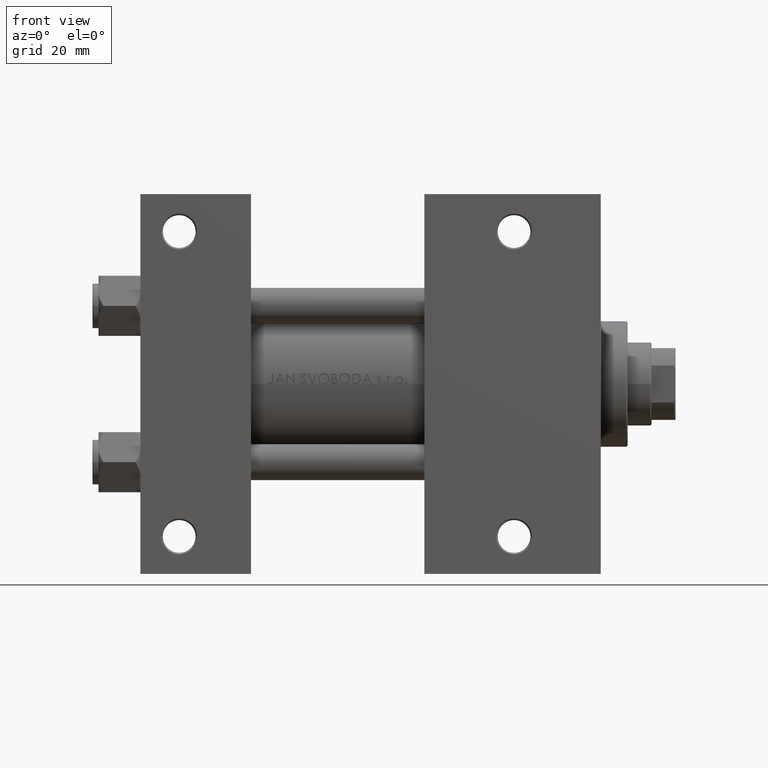
[diagram: clean part render]
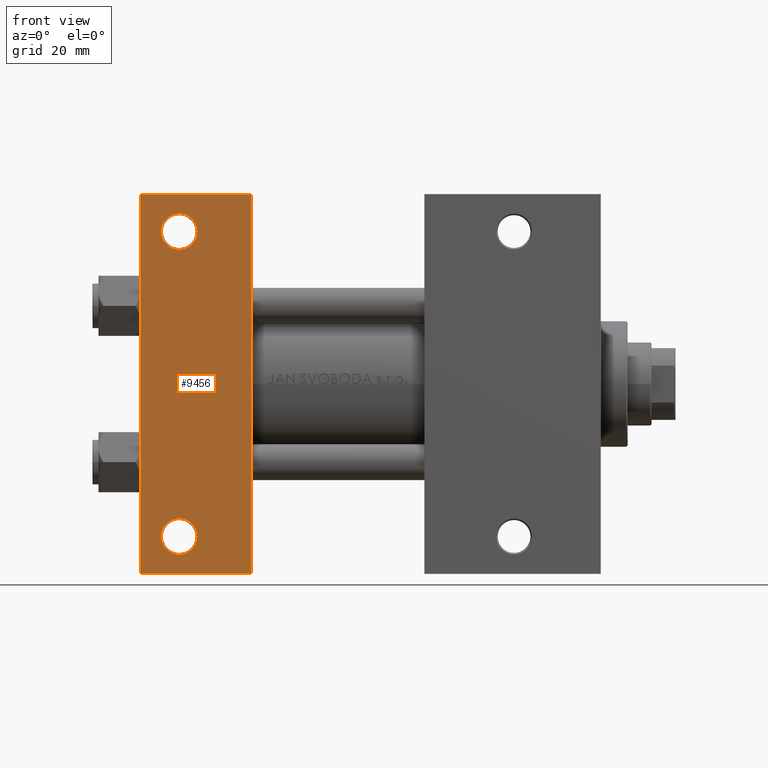
[diagram: same view with one face highlighted and labeled with its STEP entity id]
A machine part, front view. The second image highlights one B-rep face of the part: STEP entity #9456.
In plain terms, the highlighted planar face has unit normal (0, -1, -0).
Its self-contained STEP definition (entity closure, byte-faithful):
#264 = PLANE ( 'NONE',  #11483 ) ;
#335 = DIRECTION ( 'NONE',  ( 0.000000000000000000, -1.000000000000000000, -9.251858538542972814E-17 ) ) ;
#772 = LINE ( 'NONE', #19772, #32164 ) ;
#1281 = AXIS2_PLACEMENT_3D ( 'NONE', #23562, #45920, #28547 ) ;
#2086 = CARTESIAN_POINT ( 'NONE',  ( 1.595073532467135441E-14, 63.50000000000000000, -37.50000000000002132 ) ) ;
#2662 = EDGE_CURVE ( 'NONE', #21174, #25303, #22852, .T. ) ;
#2980 = VERTEX_POINT ( 'NONE', #45583 ) ;
#3198 = CARTESIAN_POINT ( 'NONE',  ( 12.99999999999999822, -51.00000000000001421, -37.50000000000000711 ) ) ;
#3440 = DIRECTION ( 'NONE',  ( 0.000000000000000000, 1.000000000000000000, 0.000000000000000000 ) ) ;
#4026 = EDGE_LOOP ( 'NONE', ( #34641, #22354 ) ) ;
#5370 = EDGE_CURVE ( 'NONE', #14717, #8115, #25932, .T. ) ;
#6138 = CARTESIAN_POINT ( 'NONE',  ( 3.977209754999747208E-16, -63.50000000000000000, -37.49999999999999289 ) ) ;
#7269 = VERTEX_POINT ( 'NONE', #42899 ) ;
#7382 = VECTOR ( 'NONE', #30565, 1000.000000000000000 ) ;
#8115 = VERTEX_POINT ( 'NONE', #27789 ) ;
#9456 = ADVANCED_FACE ( 'NONE', ( #29401, #44049, #11114 ), #264, .T. ) ;
#11114 = FACE_OUTER_BOUND ( 'NONE', #36495, .T. ) ;
#11483 = AXIS2_PLACEMENT_3D ( 'NONE', #25539, #47175, #25779 ) ;
#14078 = LINE ( 'NONE', #6138, #32122 ) ;
#14453 = CARTESIAN_POINT ( 'NONE',  ( 37.00000000000000000, -63.50000000000000000, -37.49999999999999289 ) ) ;
#14717 = VERTEX_POINT ( 'NONE', #29321 ) ;
#14776 = CARTESIAN_POINT ( 'NONE',  ( 37.00000000000000000, 37.49999999999999289, -37.50000000000000000 ) ) ;
#15113 = EDGE_CURVE ( 'NONE', #8115, #14717, #46599, .T. ) ;
#17551 = CIRCLE ( 'NONE', #22910, 5.999500000000018929 ) ;
#17652 = VECTOR ( 'NONE', #335, 1000.000000000000000 ) ;
#18469 = EDGE_CURVE ( 'NONE', #27640, #2980, #14078, .T. ) ;
#19762 = EDGE_CURVE ( 'NONE', #26704, #7269, #17551, .T. ) ;
#19772 = CARTESIAN_POINT ( 'NONE',  ( 0.000000000000000000, 37.49999999999999289, -37.50000000000000000 ) ) ;
#19837 = EDGE_CURVE ( 'NONE', #21174, #2980, #772, .T. ) ;
#21174 = VERTEX_POINT ( 'NONE', #46454 ) ;
#22354 = ORIENTED_EDGE ( 'NONE', *, *, #5370, .T. ) ;
#22852 = LINE ( 'NONE', #2086, #7382 ) ;
#22910 = AXIS2_PLACEMENT_3D ( 'NONE', #3198, #26053, #3440 ) ;
#23491 = CARTESIAN_POINT ( 'NONE',  ( 7.000499999999979295, -51.00000000000001421, -37.50000000000000711 ) ) ;
#23562 = CARTESIAN_POINT ( 'NONE',  ( 12.99999999999999822, 50.99999999999996447, -37.50000000000000000 ) ) ;
#25303 = VERTEX_POINT ( 'NONE', #45630 ) ;
#25539 = CARTESIAN_POINT ( 'NONE',  ( 37.00000000000000000, 37.49999999999999289, -37.50000000000000000 ) ) ;
#25779 = DIRECTION ( 'NONE',  ( 0.000000000000000000, 1.000000000000000000, 9.251858538542972814E-17 ) ) ;
#25932 = CIRCLE ( 'NONE', #32071, 5.999499999999990507 ) ;
#26053 = DIRECTION ( 'NONE',  ( -0.000000000000000000, -9.251858538542972814E-17, 1.000000000000000000 ) ) ;
#26704 = VERTEX_POINT ( 'NONE', #23491 ) ;
#27573 = DIRECTION ( 'NONE',  ( -0.000000000000000000, -9.251858538542972814E-17, 1.000000000000000000 ) ) ;
#27640 = VERTEX_POINT ( 'NONE', #14453 ) ;
#27789 = CARTESIAN_POINT ( 'NONE',  ( 7.000500000000006828, 50.99999999999996447, -37.50000000000000000 ) ) ;
#28547 = DIRECTION ( 'NONE',  ( 0.000000000000000000, 1.000000000000000000, 0.000000000000000000 ) ) ;
#28790 = EDGE_CURVE ( 'NONE', #25303, #27640, #44123, .T. ) ;
#29321 = CARTESIAN_POINT ( 'NONE',  ( 18.99949999999998695, 50.99999999999996447, -37.50000000000000000 ) ) ;
#29401 = FACE_BOUND ( 'NONE', #4026, .T. ) ;
#29756 = ORIENTED_EDGE ( 'NONE', *, *, #42055, .T. ) ;
#30565 = DIRECTION ( 'NONE',  ( 1.000000000000000000, 0.000000000000000000, 0.000000000000000000 ) ) ;
#31056 = CIRCLE ( 'NONE', #33369, 5.999500000000018929 ) ;
#32071 = AXIS2_PLACEMENT_3D ( 'NONE', #46256, #46024, #34755 ) ;
#32122 = VECTOR ( 'NONE', #35758, 1000.000000000000000 ) ;
#32164 = VECTOR ( 'NONE', #41434, 1000.000000000000000 ) ;
#32646 = ORIENTED_EDGE ( 'NONE', *, *, #19762, .T. ) ;
#33369 = AXIS2_PLACEMENT_3D ( 'NONE', #35045, #27573, #42246 ) ;
#33411 = ORIENTED_EDGE ( 'NONE', *, *, #18469, .T. ) ;
#34623 = EDGE_LOOP ( 'NONE', ( #32646, #29756 ) ) ;
#34641 = ORIENTED_EDGE ( 'NONE', *, *, #15113, .T. ) ;
#34755 = DIRECTION ( 'NONE',  ( 0.000000000000000000, 1.000000000000000000, 0.000000000000000000 ) ) ;
#35045 = CARTESIAN_POINT ( 'NONE',  ( 12.99999999999999822, -51.00000000000001421, -37.50000000000000711 ) ) ;
#35758 = DIRECTION ( 'NONE',  ( -1.000000000000000000, -0.000000000000000000, -0.000000000000000000 ) ) ;
#36208 = ORIENTED_EDGE ( 'NONE', *, *, #2662, .T. ) ;
#36495 = EDGE_LOOP ( 'NONE', ( #40831, #36208, #44203, #33411 ) ) ;
#40831 = ORIENTED_EDGE ( 'NONE', *, *, #19837, .F. ) ;
#41434 = DIRECTION ( 'NONE',  ( 0.000000000000000000, -1.000000000000000000, -9.251858538542972814E-17 ) ) ;
#42055 = EDGE_CURVE ( 'NONE', #7269, #26704, #31056, .T. ) ;
#42246 = DIRECTION ( 'NONE',  ( 0.000000000000000000, 1.000000000000000000, 0.000000000000000000 ) ) ;
#42899 = CARTESIAN_POINT ( 'NONE',  ( 18.99950000000001538, -51.00000000000001421, -37.50000000000000711 ) ) ;
#44049 = FACE_BOUND ( 'NONE', #34623, .T. ) ;
#44123 = LINE ( 'NONE', #14776, #17652 ) ;
#44203 = ORIENTED_EDGE ( 'NONE', *, *, #28790, .T. ) ;
#45583 = CARTESIAN_POINT ( 'NONE',  ( 3.977209754999747208E-16, -63.50000000000000000, -37.49999999999999289 ) ) ;
#45630 = CARTESIAN_POINT ( 'NONE',  ( 37.00000000000001421, 63.50000000000000000, -37.50000000000002132 ) ) ;
#45920 = DIRECTION ( 'NONE',  ( -0.000000000000000000, -9.251858538542972814E-17, 1.000000000000000000 ) ) ;
#46024 = DIRECTION ( 'NONE',  ( -0.000000000000000000, -9.251858538542972814E-17, 1.000000000000000000 ) ) ;
#46256 = CARTESIAN_POINT ( 'NONE',  ( 12.99999999999999822, 50.99999999999996447, -37.50000000000000000 ) ) ;
#46454 = CARTESIAN_POINT ( 'NONE',  ( 1.595073532467135441E-14, 63.50000000000000000, -37.50000000000002132 ) ) ;
#46599 = CIRCLE ( 'NONE', #1281, 5.999499999999990507 ) ;
#47175 = DIRECTION ( 'NONE',  ( 0.000000000000000000, 9.251858538542972814E-17, -1.000000000000000000 ) ) ;